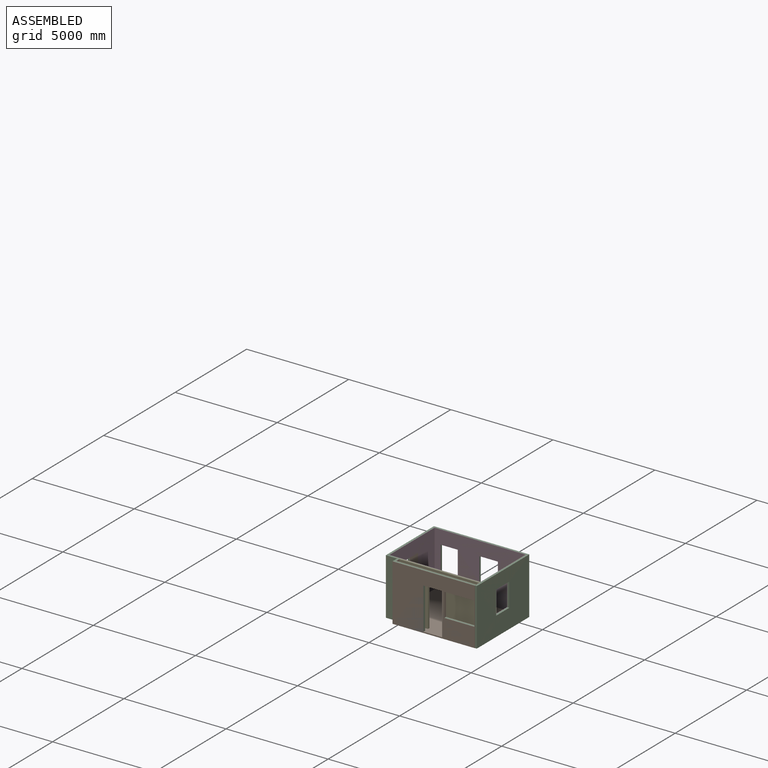
[diagram: assembled view]
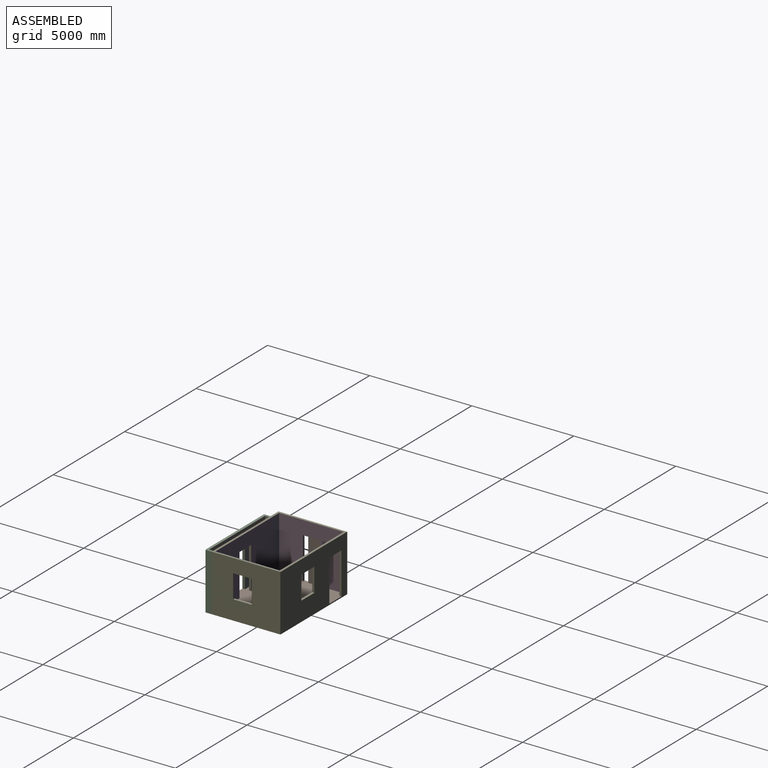
[diagram: assembled view, second angle]
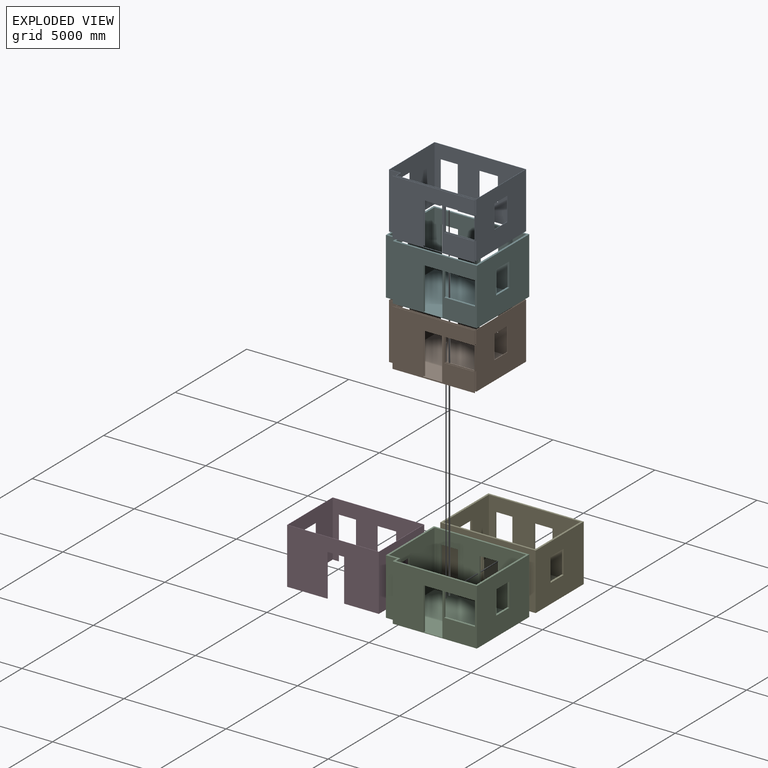
[diagram: exploded view]
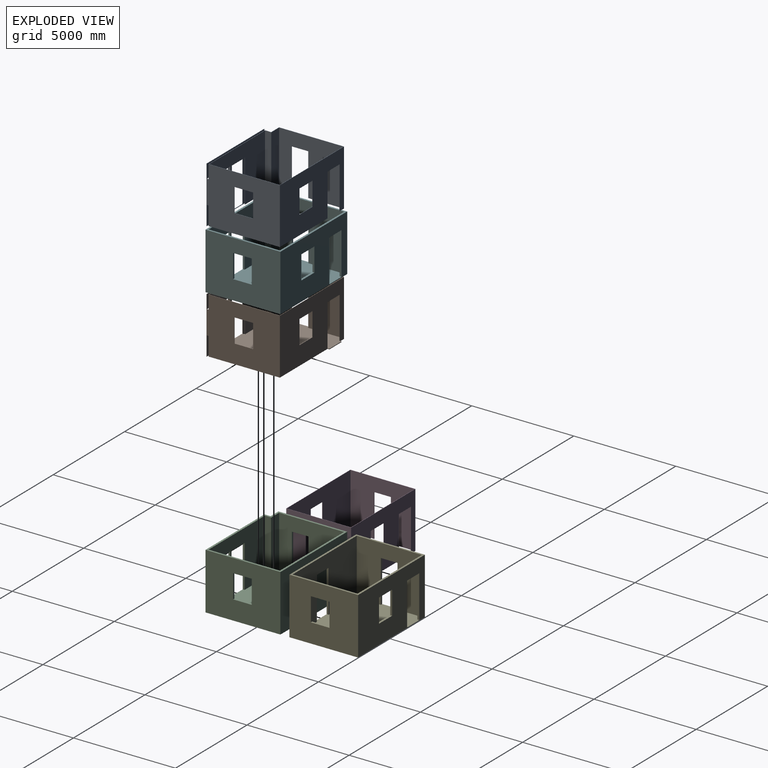
[diagram: exploded view, second angle]
ASSEMBLY  parts=6 mates=4
PART A: 52 faces, bbox 4489.7x3594.2x2768.6 mm
  f0: plane 1477.06x15.85mm, normal (0,0,1), area 23410.8mm2, adj f2,f3,f5,f51
  f1: plane 1477.06x15.85mm, normal (0,0,-1), area 23410.8mm2, adj f2,f3,f5,f51
  f2: plane 4029.46x2768.6mm, normal (0,-1,0), area 7549939mm2, adj f0,f1,f5,f23,f41,f42,f43,f44
  f3: plane 4029.46x2768.6mm, normal (0,1,0), area 7513223.7mm2, adj f0,f1,f23,f31,f32,f41,f42,f43
  f4: plane 3906.32x2743.2mm, normal (0,1,0), area 7109795.3mm2, adj f5,f8,f14,f22,f34,f35,f36,f37
  f5: plane 3578.33x2743.2mm, normal (-1,0,0), area 8561800.2mm2, adj f0,f1,f2,f4,f6,f14,f22,f27
  f6: plane 4457.98x2743.2mm, normal (0,-1,0), area 9413795.4mm2, adj f5,f12,f14,f15,f18,f19,f20,f21
  f7: plane 2743.2x551.69mm, normal (0,-1,0), area 1513390.5mm2, adj f8,f14,f16,f39
  f8: plane 1975.1x930.25mm, normal (0,0,-1), area 45827mm2, adj f4,f7,f9,f15,f16,f17,f30,f38
  f9: plane 2072.64x15.88mm, normal (0,1,0), area 32903.2mm2, adj f8,f10,f15,f16
  f10: plane 812.8x15.88mm, normal (0,0,-1), area 12903.2mm2, adj f9,f11,f15,f16
  f11: plane 2072.64x15.88mm, normal (0,-1,0), area 32903.2mm2, adj f10,f12,f15,f16
  f12: plane 1743.86x304.8mm, normal (0,0,-1), area 32270.5mm2, adj f6,f11,f13,f15,f16,f24
  f13: plane 4489.7x2743.2mm, normal (0,1,0), area 9500822.3mm2, adj f12,f14,f16,f18,f19,f20,f21,f22
  f14: plane 4489.7x3486.91mm, normal (0,0,1), area 252054.8mm2, adj f4,f5,f6,f7,f13,f15,f16,f17
  f15: plane 3150.36x2743.2mm, normal (1,0,0), area 6957431.2mm2, adj f6,f8,f9,f10,f11,f12,f14,f17
  f16: plane 3182.11x2743.2mm, normal (-1,0,0), area 7044527.8mm2, adj f7,f8,f9,f10,f11,f12,f13,f14
  f17: plane 2743.2x551.66mm, normal (0,1,0), area 1513320.8mm2, adj f8,f14,f15,f40
  f18: plane 1158.24x15.88mm, normal (-1,0,0), area 18387.1mm2, adj f6,f13,f19,f26
  f19: plane 914.4x15.88mm, normal (0,0,1), area 14516.1mm2, adj f6,f13,f18,f20
  f20: plane 1158.24x15.88mm, normal (1,0,0), area 18387.1mm2, adj f6,f13,f19,f26
  f21: plane 2072.64x15.88mm, normal (-1,0,0), area 32903.2mm2, adj f6,f13,f22,f25
  f22: plane 3486.91x3337.56mm, normal (0,0,-1), area 133109.6mm2, adj f4,f5,f6,f13,f21,f23,f30,f36
  f23: plane 3594.2x2768.6mm, normal (1,0,0), area 8655993mm2, adj f2,f3,f13,f14,f22,f27,f28,f29
  f24: plane 2072.64x15.88mm, normal (1,0,0), area 32903.2mm2, adj f6,f12,f13,f25
  f25: plane 847.34x15.88mm, normal (0,0,-1), area 13451.6mm2, adj f6,f13,f21,f24
  f26: plane 914.4x15.88mm, normal (0,0,-1), area 14516.1mm2, adj f6,f13,f18,f20
  f27: plane 914.4x15.85mm, normal (0,0,1), area 14492.9mm2, adj f5,f23,f28,f33
  f28: plane 1158.24x15.85mm, normal (0,-1,0), area 18357.6mm2, adj f5,f23,f27,f29
  f29: plane 914.4x15.85mm, normal (0,0,-1), area 14492.9mm2, adj f5,f23,f28,f33
  f30: plane 3938.02x2743.2mm, normal (0,-1,0), area 7160037.3mm2, adj f8,f14,f22,f23,f31,f32,f34,f35
  f31: plane 91.44x15.85mm, normal (0,0,-1), area 1449.3mm2, adj f3,f5,f23,f30
  f32: plane 91.44x15.85mm, normal (0,0,1), area 1449.3mm2, adj f3,f5,f23,f30
  f33: plane 1158.24x15.85mm, normal (0,1,0), area 18357.6mm2, adj f5,f23,f27,f29
  f34: plane 1477.06x15.85mm, normal (0,0,-1), area 23410.8mm2, adj f4,f5,f30,f51
  f35: plane 1477.06x15.85mm, normal (0,0,1), area 23410.8mm2, adj f4,f5,f30,f51
  f36: plane 2072.64x15.85mm, normal (-1,0,0), area 32850.5mm2, adj f4,f22,f30,f37
  f37: plane 914.4x15.85mm, normal (0,0,-1), area 14492.9mm2, adj f4,f30,f36,f38
  f38: plane 2072.64x15.85mm, normal (1,0,0), area 32850.5mm2, adj f4,f8,f30,f37
  f39: plane 2743.2x304.8mm, normal (-1,0,0), area 836127.4mm2, adj f7,f8,f14,f30
  f40: plane 2743.2x304.83mm, normal (1,0,0), area 836197mm2, adj f4,f8,f14,f17
  f41: plane 2072.64x15.85mm, normal (1,0,0), area 32850.5mm2, adj f2,f3,f42,f46
  f42: plane 914.4x15.85mm, normal (0,0,-1), area 14492.9mm2, adj f2,f3,f41,f43
  f43: plane 2072.64x15.85mm, normal (-1,0,0), area 32850.5mm2, adj f2,f3,f42,f46
  f44: plane 4029.46x15.85mm, normal (0,0,-1), area 63865.3mm2, adj f2,f3,f23,f47
  f45: plane 4029.46x15.85mm, normal (0,0,1), area 63865.3mm2, adj f2,f3,f23,f47
  f46: plane 914.4x15.85mm, normal (0,0,1), area 14492.9mm2, adj f2,f3,f41,f43
  f47: plane 2768.6x15.85mm, normal (-1,0,0), area 43881.2mm2, adj f2,f3,f44,f45
  f48: plane 91.44x15.85mm, normal (0,0,-1), area 1449.3mm2, adj f3,f30,f50,f51
  f49: plane 91.44x15.85mm, normal (0,0,1), area 1449.3mm2, adj f3,f30,f50,f51
  f50: plane 1158.24x91.44mm, normal (-1,0,0), area 105909.5mm2, adj f3,f30,f48,f49
  f51: plane 1158.24x123.14mm, normal (1,0,0), area 142624.7mm2, adj f0,f1,f2,f4,f34,f35,f48,f49
PART B: 58 faces, bbox 4581.1x3685.6x2768.6 mm
  f0: plane 1477.06x15.85mm, normal (0,0,1), area 23410.8mm2, adj f2,f3,f5,f48
  f1: plane 1477.06x15.85mm, normal (0,0,-1), area 23410.8mm2, adj f2,f3,f5,f48
  f2: plane 4029.46x2768.6mm, normal (0,-1,0), area 7577809.9mm2, adj f0,f1,f5,f21,f39,f40,f41,f42
  f3: plane 4029.46x2768.6mm, normal (0,1,0), area 7513223.7mm2, adj f0,f1,f11,f21,f29,f30,f39,f40
  f4: plane 3906.32x2712.72mm, normal (0,1,0), area 7018601.7mm2, adj f5,f13,f32,f33,f34,f35,f36,f38
  f5: plane 3578.33x2712.72mm, normal (-1,0,0), area 8456486.1mm2, adj f0,f1,f2,f4,f6,f13,f25,f26
  f6: plane 4457.98x2712.72mm, normal (0,-1,0), area 9303743.2mm2, adj f5,f13,f14,f17,f18,f19,f20,f22
  f7: plane 2743.2x551.69mm, normal (0,-1,0), area 1513390.5mm2, adj f11,f13,f15,f37
  f8: plane 2042.16x15.88mm, normal (0,1,0), area 32419.3mm2, adj f9,f14,f15,f51
  f9: plane 812.8x15.88mm, normal (0,0,-1), area 12903.2mm2, adj f8,f10,f14,f15
  f10: plane 2042.16x15.88mm, normal (0,-1,0), area 32419.3mm2, adj f9,f14,f15,f51
  f11: plane 4581.14x3669.79mm, normal (0,0,-1), area 15722464.6mm2, adj f3,f7,f12,f15,f21,f28,f37,f49
  f12: plane 4489.7x2743.2mm, normal (0,1,0), area 9500822.3mm2, adj f11,f13,f15,f17,f18,f19,f20,f21
  f13: plane 4489.7x3486.91mm, normal (0,0,1), area 252054.8mm2, adj f4,f5,f6,f7,f12,f14,f15,f16
  f14: plane 3150.36x2712.72mm, normal (1,0,0), area 6886182.4mm2, adj f6,f8,f9,f10,f13,f16,f51
  f15: plane 3182.11x2743.2mm, normal (-1,0,0), area 7044527.8mm2, adj f7,f8,f9,f10,f11,f12,f13,f55
  f16: plane 2712.72x551.66mm, normal (0,1,0), area 1496506.2mm2, adj f13,f14,f38,f51
  f17: plane 1158.24x15.88mm, normal (-1,0,0), area 18387.1mm2, adj f6,f12,f18,f24
  f18: plane 914.4x15.88mm, normal (0,0,1), area 14516.1mm2, adj f6,f12,f17,f19
  f19: plane 1158.24x15.88mm, normal (1,0,0), area 18387.1mm2, adj f6,f12,f18,f24
  f20: plane 2042.16x15.88mm, normal (-1,0,0), area 32419.3mm2, adj f6,f12,f23,f51
  f21: plane 3594.2x2768.6mm, normal (1,0,0), area 8655993mm2, adj f2,f3,f11,f12,f13,f25,f26,f27
  f22: plane 2042.16x15.88mm, normal (1,0,0), area 32419.3mm2, adj f6,f12,f23,f51
  f23: plane 847.34x15.88mm, normal (0,0,-1), area 13451.6mm2, adj f6,f12,f20,f22
  f24: plane 914.4x15.88mm, normal (0,0,-1), area 14516.1mm2, adj f6,f12,f17,f19
  f25: plane 914.4x15.85mm, normal (0,0,1), area 14492.9mm2, adj f5,f21,f26,f31
  f26: plane 1158.24x15.85mm, normal (0,-1,0), area 18357.6mm2, adj f5,f21,f25,f27
  f27: plane 914.4x15.85mm, normal (0,0,-1), area 14492.9mm2, adj f5,f21,f26,f31
  f28: plane 3938.02x2743.2mm, normal (0,-1,0), area 7160037.3mm2, adj f11,f13,f21,f29,f30,f32,f33,f34
  f29: plane 91.44x15.85mm, normal (0,0,-1), area 1449.3mm2, adj f3,f5,f21,f28
  f30: plane 91.44x15.85mm, normal (0,0,1), area 1449.3mm2, adj f3,f5,f21,f28
  f31: plane 1158.24x15.85mm, normal (0,1,0), area 18357.6mm2, adj f5,f21,f25,f27
  f32: plane 1477.06x15.85mm, normal (0,0,-1), area 23410.8mm2, adj f4,f5,f28,f48
  f33: plane 1477.06x15.85mm, normal (0,0,1), area 23410.8mm2, adj f4,f5,f28,f48
  f34: plane 2042.16x15.85mm, normal (-1,0,0), area 32367.4mm2, adj f4,f28,f35,f51
  f35: plane 914.4x15.85mm, normal (0,0,-1), area 14492.9mm2, adj f4,f28,f34,f36
  f36: plane 2042.16x15.85mm, normal (1,0,0), area 32367.4mm2, adj f4,f28,f35,f51
  f37: plane 2743.2x304.8mm, normal (-1,0,0), area 836127.4mm2, adj f7,f11,f13,f28
  f38: plane 2712.72x304.83mm, normal (1,0,0), area 826906mm2, adj f4,f13,f16,f51
  f39: plane 2042.16x15.85mm, normal (1,0,0), area 32367.4mm2, adj f2,f3,f40,f51
  f40: plane 914.4x15.85mm, normal (0,0,-1), area 14492.9mm2, adj f2,f3,f39,f41
  f41: plane 2042.16x15.85mm, normal (-1,0,0), area 32367.4mm2, adj f2,f3,f40,f51
  f42: plane 4029.46x15.85mm, normal (0,0,-1), area 63865.3mm2, adj f2,f3,f21,f44
  f43: plane 4029.46x15.85mm, normal (0,0,1), area 63865.3mm2, adj f2,f3,f21,f44
  f44: plane 2768.6x15.85mm, normal (-1,0,0), area 43881.2mm2, adj f2,f3,f42,f43
  f45: plane 91.44x15.85mm, normal (0,0,-1), area 1449.3mm2, adj f3,f28,f47,f48
  f46: plane 91.44x15.85mm, normal (0,0,1), area 1449.3mm2, adj f3,f28,f47,f48
  f47: plane 1158.24x91.44mm, normal (-1,0,0), area 105909.5mm2, adj f3,f28,f45,f46
  f48: plane 1158.24x123.14mm, normal (1,0,0), area 142624.7mm2, adj f0,f1,f2,f4,f32,f33,f45,f46
  f49: plane 91.44x30.48mm, normal (-1,0,0), area 2787.1mm2, adj f3,f11,f28,f51
  f50: plane 91.44x30.48mm, normal (1,0,0), area 2787.1mm2, adj f3,f11,f28,f51
  f51: plane 4565.29x3685.64mm, normal (0,0,1), area 15525750.3mm2, adj f2,f4,f5,f6,f8,f10,f14,f16
  f52: plane 91.44x30.48mm, normal (1,0,0), area 2787.1mm2, adj f11,f12,f51,f53
  f53: plane 847.34x30.48mm, normal (0,1,0), area 25827mm2, adj f11,f51,f52,f54
  f54: plane 91.44x30.48mm, normal (-1,0,0), area 2787.1mm2, adj f11,f12,f51,f53
  f55: plane 91.44x30.48mm, normal (0,1,0), area 2787.1mm2, adj f11,f15,f51,f56
  f56: plane 812.8x30.48mm, normal (-1,0,0), area 24774.1mm2, adj f11,f51,f55,f57
  f57: plane 91.44x30.48mm, normal (0,-1,0), area 2787.1mm2, adj f11,f15,f51,f56
PART C: 35 faces, bbox 4672.6x3669.8x2768.6 mm
  f0: plane 3578.35x2743.2mm, normal (-1,0,0), area 8612111.8mm2, adj f9,f10,f14,f16,f18,f19,f20,f26
  f1: plane 2072.64x91.44mm, normal (1,0,0), area 189522.2mm2, adj f14,f16,f20,f31
  f2: plane 2072.64x91.44mm, normal (-1,0,0), area 189522.2mm2, adj f14,f16,f20,f31
  f3: plane 2072.64x91.44mm, normal (0,1,0), area 189522.2mm2, adj f13,f16,f23,f30
  f4: plane 2072.64x91.44mm, normal (0,-1,0), area 189522.2mm2, adj f13,f16,f23,f30
  f5: plane 2072.64x91.44mm, normal (-1,0,0), area 189522.2mm2, adj f12,f16,f19,f29
  f6: plane 2072.64x91.44mm, normal (1,0,0), area 189522.2mm2, adj f12,f16,f19,f29
  f7: plane 1158.24x91.44mm, normal (-1,0,0), area 105909.5mm2, adj f12,f19,f28,f34
  f8: plane 1158.24x91.44mm, normal (1,0,0), area 105909.5mm2, adj f12,f19,f28,f34
  f9: plane 1158.24x91.44mm, normal (0,1,0), area 105909.5mm2, adj f0,f17,f27,f33
  f10: plane 1158.24x91.44mm, normal (0,-1,0), area 105909.5mm2, adj f0,f17,f27,f33
  f11: plane 1158.24x91.44mm, normal (1,0,0), area 105909.5mm2, adj f14,f20,f26,f32
  f12: plane 4672.58x2768.6mm, normal (0,1,0), area 10121182.3mm2, adj f5,f6,f7,f8,f13,f15,f16,f17
  f13: plane 3364.99x2768.6mm, normal (-1,0,0), area 7631675.1mm2, adj f3,f4,f12,f15,f16,f18,f24,f30
  f14: plane 4120.9x2768.6mm, normal (0,-1,0), area 7766384.5mm2, adj f0,f1,f2,f11,f15,f16,f17,f18
  f15: plane 4672.58x3669.79mm, normal (0,0,-1), area 16979256.9mm2, adj f12,f13,f14,f17,f24,f25
  f16: plane 4581.14x3669.79mm, normal (0,0,1), area 15722464.6mm2, adj f0,f1,f2,f3,f4,f5,f6,f12
  f17: plane 3669.79x2768.6mm, normal (1,0,0), area 9101091.5mm2, adj f9,f10,f12,f14,f15,f18,f27,f33
  f18: plane 4672.58x3669.79mm, normal (0,0,1), area 1492208.6mm2, adj f0,f12,f13,f14,f17,f19,f20,f21
  f19: plane 4489.7x2743.2mm, normal (0,-1,0), area 9500822.3mm2, adj f0,f5,f6,f7,f8,f16,f18,f23
  f20: plane 3938.02x2743.2mm, normal (0,1,0), area 7160037.3mm2, adj f0,f1,f2,f11,f16,f18,f21,f26
  f21: plane 2743.2x304.8mm, normal (1,0,0), area 836127.4mm2, adj f16,f18,f20,f22
  f22: plane 2743.2x551.69mm, normal (0,1,0), area 1513390.5mm2, adj f16,f18,f21,f23
  f23: plane 3182.11x2743.2mm, normal (1,0,0), area 7044527.8mm2, adj f3,f4,f16,f18,f19,f22,f30
  f24: plane 2768.6x551.69mm, normal (0,-1,0), area 1527403.4mm2, adj f13,f15,f18,f25
  f25: plane 2768.6x304.8mm, normal (-1,0,0), area 843869.3mm2, adj f14,f15,f18,f24
  f26: plane 1508.76x91.44mm, normal (0,0,-1), area 137961mm2, adj f0,f11,f14,f20
  f27: plane 914.4x91.44mm, normal (0,0,-1), area 83612.7mm2, adj f0,f9,f10,f17
  f28: plane 914.4x91.44mm, normal (0,0,-1), area 83612.7mm2, adj f7,f8,f12,f19
  f29: plane 847.34x91.44mm, normal (0,0,-1), area 77481.1mm2, adj f5,f6,f12,f19
  f30: plane 812.8x91.44mm, normal (0,0,-1), area 74322.4mm2, adj f3,f4,f13,f23
  f31: plane 914.4x91.44mm, normal (0,0,-1), area 83612.7mm2, adj f1,f2,f14,f20
  f32: plane 1508.76x91.44mm, normal (0,0,1), area 137961mm2, adj f0,f11,f14,f20
  f33: plane 914.4x91.44mm, normal (0,0,1), area 83612.7mm2, adj f0,f9,f10,f17
  f34: plane 914.4x91.44mm, normal (0,0,1), area 83612.7mm2, adj f7,f8,f12,f19
PART D: 29 faces, bbox 4489.7x3182.1x2743.2 mm
  f0: plane 1158.24x15.88mm, normal (-1,0,0), area 18387.1mm2, adj f1,f11,f12,f13
  f1: plane 914.4x15.88mm, normal (0,0,1), area 14516.1mm2, adj f0,f2,f12,f13
  f2: plane 1158.24x15.88mm, normal (1,0,0), area 18387.1mm2, adj f1,f11,f12,f13
  f3: plane 2072.64x15.88mm, normal (-1,0,0), area 32903.2mm2, adj f4,f10,f12,f13
  f4: plane 3337.56x3182.11mm, normal (0,0,-1), area 129947.3mm2, adj f3,f5,f12,f13,f14,f20,f23,f28
  f5: plane 3182.11x2743.2mm, normal (1,0,0), area 7670075mm2, adj f4,f6,f13,f14,f24,f25,f26,f27
  f6: plane 4489.7x3182.11mm, normal (0,0,1), area 242572.1mm2, adj f5,f7,f12,f13,f14,f19,f23,f28
  f7: plane 3182.11x2743.2mm, normal (-1,0,0), area 7036104.6mm2, adj f6,f8,f13,f14,f15,f16,f17,f18
  f8: plane 1185.67x304.8mm, normal (0,0,-1), area 23409.2mm2, adj f7,f9,f12,f13,f18,f19
  f9: plane 2072.64x15.88mm, normal (1,0,0), area 32903.2mm2, adj f8,f10,f12,f13
  f10: plane 847.34x15.88mm, normal (0,0,-1), area 13451.6mm2, adj f3,f9,f12,f13
  f11: plane 914.4x15.88mm, normal (0,0,-1), area 14516.1mm2, adj f0,f2,f12,f13
  f12: plane 4457.95x2743.2mm, normal (0,-1,0), area 9413725.7mm2, adj f0,f1,f2,f3,f4,f6,f8,f9
  f13: plane 4489.7x2743.2mm, normal (0,1,0), area 9500822.3mm2, adj f0,f1,f2,f3,f4,f5,f6,f7
  f14: plane 4489.7x2743.2mm, normal (0,-1,0), area 10623091mm2, adj f4,f5,f6,f7,f15,f20,f21,f22
  f15: plane 1975.1x1179.58mm, normal (0,0,-1), area 49828.5mm2, adj f7,f14,f16,f19,f22,f23
  f16: plane 2072.64x15.88mm, normal (0,1,0), area 32903.2mm2, adj f7,f15,f17,f19
  f17: plane 816.86x15.88mm, normal (0,0,-1), area 12967.7mm2, adj f7,f16,f18,f19
  f18: plane 2072.64x15.88mm, normal (0,-1,0), area 32903.2mm2, adj f7,f8,f17,f19
  f19: plane 3150.36x2743.2mm, normal (1,0,0), area 6949008mm2, adj f6,f8,f12,f15,f16,f17,f18,f23
  f20: plane 2072.64x15.88mm, normal (-1,0,0), area 32903.2mm2, adj f4,f14,f21,f23
  f21: plane 816.86x15.88mm, normal (0,0,-1), area 12967.7mm2, adj f14,f20,f22,f23
  f22: plane 2072.64x15.88mm, normal (1,0,0), area 32903.2mm2, adj f14,f15,f21,f23
  f23: plane 4457.95x2743.2mm, normal (0,1,0), area 10535994.4mm2, adj f4,f6,f15,f19,f20,f21,f22,f28
  f24: plane 914.4x15.88mm, normal (0,0,1), area 14516.1mm2, adj f5,f25,f27,f28
  f25: plane 1158.24x15.88mm, normal (0,-1,0), area 18387.1mm2, adj f5,f24,f26,f28
  f26: plane 914.4x15.88mm, normal (0,0,-1), area 14516.1mm2, adj f5,f25,f27,f28
  f27: plane 1158.24x15.88mm, normal (0,1,0), area 18387.1mm2, adj f5,f24,f26,f28
  f28: plane 3150.36x2743.2mm, normal (-1,0,0), area 7582978.4mm2, adj f4,f6,f12,f23,f24,f25,f26,f27
PART E: 28 faces, bbox 4672.6x3365x2768.6 mm
  f0: plane 2072.64x91.44mm, normal (-1,0,0), area 189522.2mm2, adj f12,f14,f20,f25
  f1: plane 2072.64x91.44mm, normal (1,0,0), area 189522.2mm2, adj f12,f14,f20,f25
  f2: plane 2072.64x91.44mm, normal (0,-1,0), area 189522.2mm2, adj f11,f14,f19,f24
  f3: plane 2072.64x91.44mm, normal (0,1,0), area 189522.2mm2, adj f11,f14,f19,f24
  f4: plane 1158.24x91.44mm, normal (0,-1,0), area 105909.5mm2, adj f15,f16,f23,f27
  f5: plane 1158.24x91.44mm, normal (0,1,0), area 105909.5mm2, adj f15,f16,f23,f27
  f6: plane 2072.64x91.44mm, normal (-1,0,0), area 189522.2mm2, adj f10,f14,f17,f22
  f7: plane 2072.64x91.44mm, normal (1,0,0), area 189522.2mm2, adj f10,f14,f17,f22
  f8: plane 1158.24x91.44mm, normal (-1,0,0), area 105909.5mm2, adj f10,f17,f21,f26
  f9: plane 1158.24x91.44mm, normal (1,0,0), area 105909.5mm2, adj f10,f17,f21,f26
  f10: plane 4672.58x2768.6mm, normal (0,1,0), area 10121182.3mm2, adj f6,f7,f8,f9,f11,f13,f14,f16
  f11: plane 3364.99x2768.6mm, normal (-1,0,0), area 7623251.9mm2, adj f2,f3,f10,f12,f13,f14,f18,f24
  f12: plane 4672.58x2768.6mm, normal (0,-1,0), area 11243451.1mm2, adj f0,f1,f11,f13,f14,f16,f18,f25
  f13: plane 4672.58x3364.99mm, normal (0,0,-1), area 15723207.8mm2, adj f10,f11,f12,f16
  f14: plane 4581.14x3364.99mm, normal (0,0,1), area 14513610.2mm2, adj f0,f1,f2,f3,f6,f7,f10,f11
  f15: plane 3182.11x2743.2mm, normal (-1,0,0), area 7670075mm2, adj f4,f5,f14,f17,f18,f20,f23,f27
  f16: plane 3364.99x2768.6mm, normal (1,0,0), area 8257222.2mm2, adj f4,f5,f10,f12,f13,f18,f23,f27
  f17: plane 4489.7x2743.2mm, normal (0,-1,0), area 9500822.3mm2, adj f6,f7,f8,f9,f14,f15,f18,f19
  f18: plane 4672.58x3364.99mm, normal (0,0,1), area 1436466.8mm2, adj f10,f11,f12,f15,f16,f17,f19,f20
  f19: plane 3182.11x2743.2mm, normal (1,0,0), area 7036104.6mm2, adj f2,f3,f14,f17,f18,f20,f24
  f20: plane 4489.7x2743.2mm, normal (0,1,0), area 10623091mm2, adj f0,f1,f14,f15,f18,f19,f25
  f21: plane 914.4x91.44mm, normal (0,0,-1), area 83612.7mm2, adj f8,f9,f10,f17
  f22: plane 847.34x91.44mm, normal (0,0,-1), area 77481.1mm2, adj f6,f7,f10,f17
  f23: plane 914.4x91.44mm, normal (0,0,-1), area 83612.7mm2, adj f4,f5,f15,f16
  f24: plane 816.86x91.44mm, normal (0,0,-1), area 74694mm2, adj f2,f3,f11,f19
  f25: plane 816.86x91.44mm, normal (0,0,-1), area 74694mm2, adj f0,f1,f12,f20
  f26: plane 914.4x91.44mm, normal (0,0,1), area 83612.7mm2, adj f8,f9,f10,f17
  f27: plane 914.4x91.44mm, normal (0,0,1), area 83612.7mm2, adj f4,f5,f15,f16
PART F: same geometry as C
PLACE A at identity
PLACE B at identity
PLACE C at identity fixed
PLACE D at identity
PLACE E at identity fixed
PLACE F at identity
MATE fastened D.f8 <-> E.f14  axis (0,0,-1) through (3209.54,0,0)mm
MATE fastened F.f18 <-> C.f18  axis (0,0,1) through (3209.54,0,2743.2)mm
MATE fastened A.f12 <-> C.f16  axis (0,0,-1) through (3209.54,0,0)mm
MATE fastened B.f13 <-> C.f18  axis (0,0,1) through (3209.54,0,2743.2)mm
